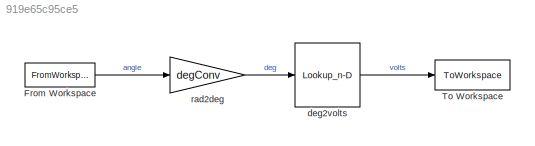
MODEL slx_919e65c95ce5
KIND model
CONFIG AbsTol = auto
CONFIG EnableMultiTasking = on
CONFIG FixedStep = auto
CONFIG MaxStep = auto
CONFIG MinStep = auto
CONFIG PreLoadFcn = t = linspace(0,10,101)';\nu = linspace(0,pi/2,101)';\ninputData = [t, u];\ndegConv = 180/pi;
CONFIG RelTol = 1e-3
CONFIG SampleTimeConstraint = Unconstrained
CONFIG Solver = VariableStepAuto
CONFIG SolverName = VariableStepAuto
CONFIG StartTime = 0.0
CONFIG StopTime = 10.0
BLOCK [FromWorkspace] From Workspace
  SampleTime = 0
  VariableName = inputData
  ZeroCross = on
BLOCK [ToWorkspace] To Workspace
  MaxDataPoints = inf
  Ports = [1]
  SampleTime = -1
  SaveFormat = Structure
  VariableName = simout
BLOCK [Lookup_n-D] deg2volts
  BreakpointsForDimension1 = [0 90]
  ExtrapMethod = Clip
  NumberOfTableDimensions = 1
  Ports = [1, 1]
  RndMeth = Simplest
  Table = [0.5 4.5]
BLOCK [Gain] rad2deg
  Gain = degConv
LINE From Workspace:1 -> rad2deg:1
LINE deg2volts:1 -> To Workspace:1
LINE rad2deg:1 -> deg2volts:1
